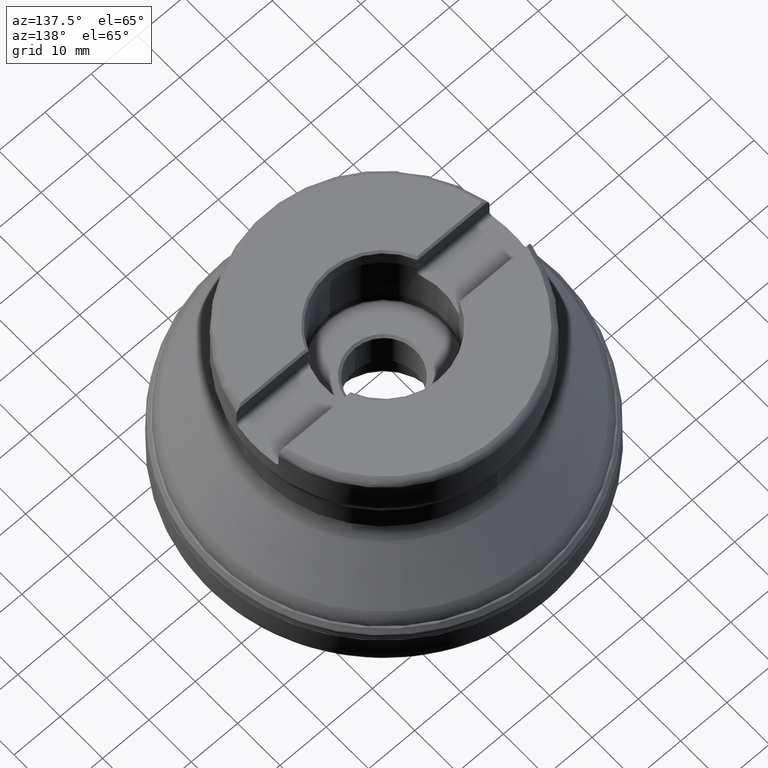
[diagram: clean part render]
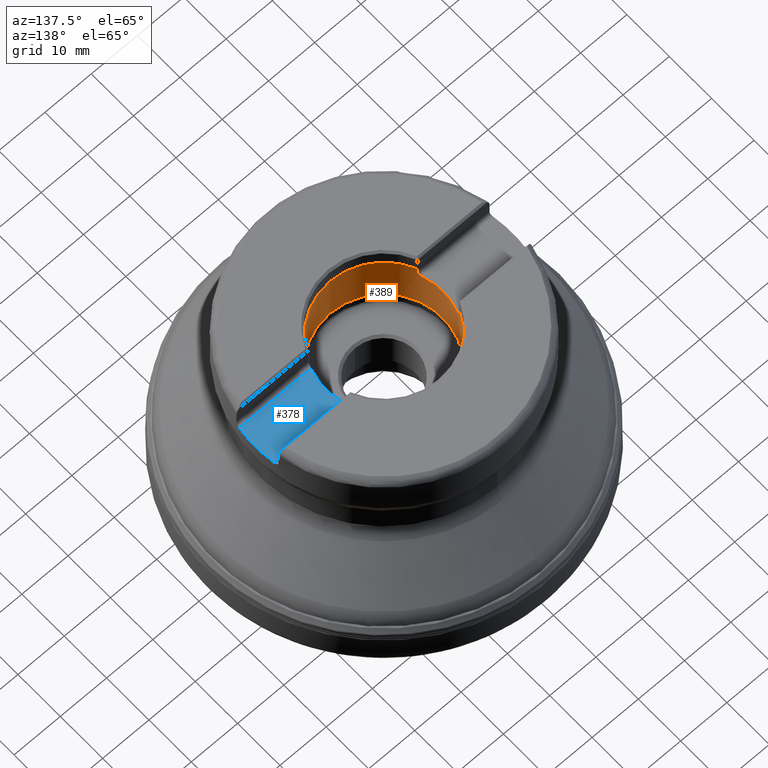
[diagram: same view with the hole feature highlighted: cylindrical wall and planar end face, labeled with their STEP entity ids]
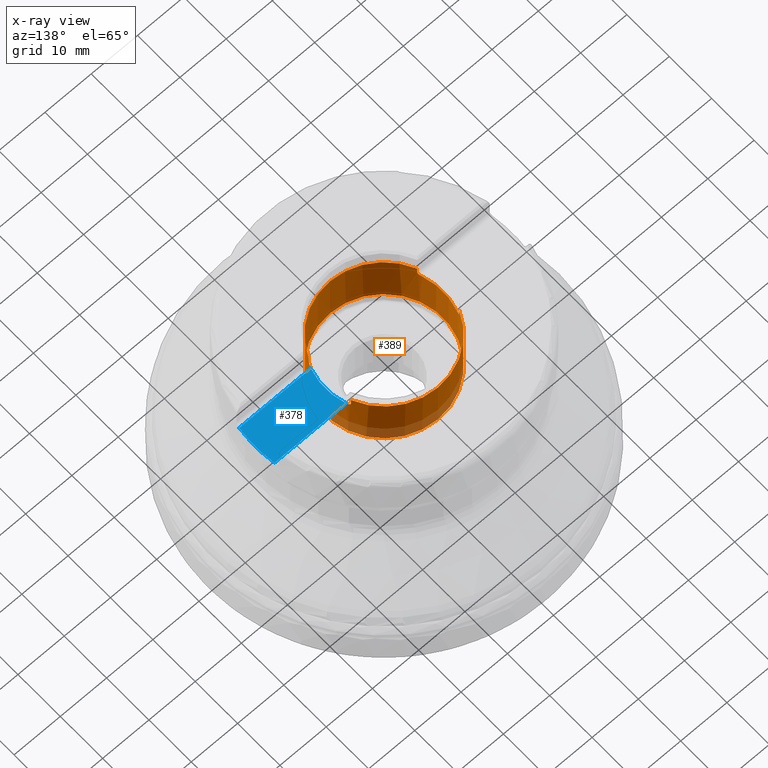
[diagram: x-ray of the same camera — body ghosted, the hole faces saturated]
A machine part, auxiliary view. The highlighted faces form one hole feature of diameter 25.4 mm: the cylindrical wall (entity #389, orange) and its adjacent planar end face (entity #378, blue) — they share a circular edge in the B-rep.
The next image is the same camera in x-ray (body ghosted, the hole faces saturated) — the bore reads through the body.
Wall:
#165=CYLINDRICAL_SURFACE('',#1260,12.7);
#188=FACE_BOUND('',#512,.T.);
#189=FACE_BOUND('',#513,.T.);
#327=LINE('',#2203,#354);
#328=LINE('',#2213,#355);
#329=LINE('',#2223,#356);
#330=LINE('',#2233,#357);
#354=VECTOR('',#1456,1.);
#355=VECTOR('',#1459,1.);
#356=VECTOR('',#1462,1.);
#357=VECTOR('',#1465,1.);
#389=ADVANCED_FACE('',(#188,#189),#165,.F.);
#512=EDGE_LOOP('',(#790));
#513=EDGE_LOOP('',(#791,#792,#793,#794,#795,#796,#797,#798,#799,#800,#801,
#802));
#630=CIRCLE('',#1242,12.7);
#631=CIRCLE('',#1248,12.7);
#634=CIRCLE('',#1257,12.7);
#635=CIRCLE('',#1258,12.7);
#636=CIRCLE('',#1259,12.7);
#790=ORIENTED_EDGE('',*,*,#1088,.F.);
#791=ORIENTED_EDGE('',*,*,#1085,.F.);
#792=ORIENTED_EDGE('',*,*,#1089,.F.);
#793=ORIENTED_EDGE('',*,*,#1087,.F.);
#794=ORIENTED_EDGE('',*,*,#1067,.T.);
#795=ORIENTED_EDGE('',*,*,#1065,.F.);
#796=ORIENTED_EDGE('',*,*,#1076,.T.);
#797=ORIENTED_EDGE('',*,*,#1083,.F.);
#798=ORIENTED_EDGE('',*,*,#1090,.F.);
#799=ORIENTED_EDGE('',*,*,#1081,.F.);
#800=ORIENTED_EDGE('',*,*,#1073,.T.);
#801=ORIENTED_EDGE('',*,*,#1077,.F.);
#802=ORIENTED_EDGE('',*,*,#1070,.T.);
#957=VERTEX_POINT('',#2103);
#958=VERTEX_POINT('',#2105);
#959=VERTEX_POINT('',#2124);
#960=VERTEX_POINT('',#2128);
#961=VERTEX_POINT('',#2145);
#962=VERTEX_POINT('',#2149);
#963=VERTEX_POINT('',#2166);
#964=VERTEX_POINT('',#2170);
#967=VERTEX_POINT('',#2202);
#968=VERTEX_POINT('',#2212);
#969=VERTEX_POINT('',#2222);
#970=VERTEX_POINT('',#2232);
#971=VERTEX_POINT('',#2236);
#1065=EDGE_CURVE('',#957,#958,#630,.T.);
#1067=EDGE_CURVE('',#959,#958,#1165,.T.);
#1070=EDGE_CURVE('',#961,#960,#1166,.T.);
#1073=EDGE_CURVE('',#963,#962,#1167,.T.);
#1076=EDGE_CURVE('',#957,#964,#1168,.T.);
#1077=EDGE_CURVE('',#961,#962,#631,.T.);
#1081=EDGE_CURVE('',#963,#967,#327,.T.);
#1083=EDGE_CURVE('',#968,#964,#328,.T.);
#1085=EDGE_CURVE('',#969,#960,#329,.T.);
#1087=EDGE_CURVE('',#959,#970,#330,.T.);
#1088=EDGE_CURVE('',#971,#971,#634,.T.);
#1089=EDGE_CURVE('',#970,#969,#635,.T.);
#1090=EDGE_CURVE('',#967,#968,#636,.T.);
#1165=B_SPLINE_CURVE_WITH_KNOTS('',3,(#2108,#2109,#2110,#2111,#2112,#2113,
#2114,#2115,#2116,#2117,#2118,#2119,#2120,#2121,#2122,#2123),
 .UNSPECIFIED.,.F.,.F.,(4,3,3,3,3,4),(0.,0.0919914640590944,0.30553597161609,
0.53426746635181,0.767237662896965,1.),.UNSPECIFIED.);
#1166=B_SPLINE_CURVE_WITH_KNOTS('',3,(#2129,#2130,#2131,#2132,#2133,#2134,
#2135,#2136,#2137,#2138,#2139,#2140,#2141,#2142,#2143,#2144),
 .UNSPECIFIED.,.F.,.F.,(4,3,3,3,3,4),(0.,0.187949566051452,0.405805927698822,
0.608459015387889,0.803993626920795,1.),.UNSPECIFIED.);
#1167=B_SPLINE_CURVE_WITH_KNOTS('',3,(#2150,#2151,#2152,#2153,#2154,#2155,
#2156,#2157,#2158,#2159,#2160,#2161,#2162,#2163,#2164,#2165),
 .UNSPECIFIED.,.F.,.F.,(4,3,3,3,3,4),(0.,0.118692613079593,0.33453699269261,
0.564581204634546,0.797853549801286,1.),.UNSPECIFIED.);
#1168=B_SPLINE_CURVE_WITH_KNOTS('',3,(#2171,#2172,#2173,#2174,#2175,#2176,
#2177,#2178,#2179,#2180,#2181,#2182,#2183,#2184,#2185,#2186),
 .UNSPECIFIED.,.F.,.F.,(4,3,3,3,3,4),(0.,0.188583691695649,0.406269930528108,
0.608764767553908,0.804146687201781,1.),.UNSPECIFIED.);
#1242=AXIS2_PLACEMENT_3D('',#2104,#1427,#1428);
#1248=AXIS2_PLACEMENT_3D('',#2188,#1446,#1447);
#1257=AXIS2_PLACEMENT_3D('',#2235,#1468,#1469);
#1258=AXIS2_PLACEMENT_3D('',#2237,#1470,#1471);
#1259=AXIS2_PLACEMENT_3D('',#2238,#1472,#1473);
#1260=AXIS2_PLACEMENT_3D('',#2239,#1474,#1475);
#1427=DIRECTION('',(0.,-1.17145536458252E-15,-1.));
#1428=DIRECTION('',(0.,-1.,1.09273919746571E-15));
#1446=DIRECTION('',(0.,-1.17145536458252E-15,-1.));
#1447=DIRECTION('',(0.,-1.,1.09273919746571E-15));
#1456=DIRECTION('',(0.,1.17145536458252E-15,1.));
#1459=DIRECTION('',(0.,-1.17145536458252E-15,-1.));
#1462=DIRECTION('',(0.,-1.17145536458252E-15,-1.));
#1465=DIRECTION('',(0.,1.17145536458252E-15,1.));
#1468=DIRECTION('',(0.,1.17145536458252E-15,1.));
#1469=DIRECTION('',(0.,-1.,1.09273919746571E-15));
#1470=DIRECTION('',(0.,-1.17145536458252E-15,-1.));
#1471=DIRECTION('',(0.,-1.,1.09273919746571E-15));
#1472=DIRECTION('',(0.,-1.17145536458252E-15,-1.));
#1473=DIRECTION('',(0.,-1.,1.09273919746571E-15));
#1474=DIRECTION('',(0.,1.17145536458252E-15,1.));
#1475=DIRECTION('',(0.,-1.,1.09273919746571E-15));
#2103=CARTESIAN_POINT('',(11.9976153880677,4.16500000000004,38.89));
#2104=CARTESIAN_POINT('',(0.,4.55578991286144E-14,38.89));
#2105=CARTESIAN_POINT('',(11.9976153880677,-4.16499999999995,38.89));
#2108=CARTESIAN_POINT('',(11.6892589585482,-4.96499999999995,39.69));
#2109=CARTESIAN_POINT('',(11.6892589585482,-4.96499999999995,39.6498060238737));
#2110=CARTESIAN_POINT('',(11.6905568194861,-4.96194760993451,39.6094795672361));
#2111=CARTESIAN_POINT('',(11.6931107662262,-4.95592177185671,39.5698220036655));
#2112=CARTESIAN_POINT('',(11.698958464125,-4.9421245848943,39.4790192286835));
#2113=CARTESIAN_POINT('',(11.711724380251,-4.91199201726467,39.3897399894335));
#2114=CARTESIAN_POINT('',(11.729516346995,-4.86913198276407,39.3102656838674));
#2115=CARTESIAN_POINT('',(11.7485630195713,-4.82324941927429,39.2251867772956));
#2116=CARTESIAN_POINT('',(11.773916121918,-4.76138290617577,39.1484896030576));
#2117=CARTESIAN_POINT('',(11.8022061367056,-4.69019512458788,39.0865349379549));
#2118=CARTESIAN_POINT('',(11.8310456314685,-4.61762465512358,39.0233769207823));
#2119=CARTESIAN_POINT('',(11.8637793603147,-4.53318108009497,38.9734606160419));
#2120=CARTESIAN_POINT('',(11.8969626110095,-4.44435379242484,38.9403591135365));
#2121=CARTESIAN_POINT('',(11.9301315013193,-4.35556494565559,38.9072719360387));
#2122=CARTESIAN_POINT('',(11.9646918126675,-4.25983899036061,38.89));
#2123=CARTESIAN_POINT('',(11.9976153880677,-4.16499999999995,38.89));
#2124=CARTESIAN_POINT('',(11.6892589585482,-4.96499999999995,39.69));
#2128=CARTESIAN_POINT('',(-11.6892589585482,-4.96499999999995,39.69));
#2129=CARTESIAN_POINT('',(-11.9976153880677,-4.16499999999995,38.89));
#2130=CARTESIAN_POINT('',(-11.9709296500294,-4.24187040127985,38.89));
#2131=CARTESIAN_POINT('',(-11.9432374526267,-4.31916929808128,38.9012554639037));
#2132=CARTESIAN_POINT('',(-11.9161252503018,-4.39271658761626,38.923093776447));
#2133=CARTESIAN_POINT('',(-11.8848042548693,-4.47768107305346,38.9483221839082));
#2134=CARTESIAN_POINT('',(-11.8535280004186,-4.55960218043711,38.988348905998));
#2135=CARTESIAN_POINT('',(-11.8250446269604,-4.63231255102615,39.0406780616263));
#2136=CARTESIAN_POINT('',(-11.7985253217435,-4.70000918509653,39.0893988654275));
#2137=CARTESIAN_POINT('',(-11.7738131527377,-4.76132932683089,39.1499720685128));
#2138=CARTESIAN_POINT('',(-11.7532950701827,-4.81145040431872,39.2187231442601));
#2139=CARTESIAN_POINT('',(-11.7335040571655,-4.85979541386512,39.2850379878333));
#2140=CARTESIAN_POINT('',(-11.7171731226468,-4.898842546446,39.360635842045));
#2141=CARTESIAN_POINT('',(-11.7061753454793,-4.92498312493471,39.4401487446211));
#2142=CARTESIAN_POINT('',(-11.695162667562,-4.95115912096419,39.5197693782281));
#2143=CARTESIAN_POINT('',(-11.6892589585482,-4.96499999999995,39.6054665324323));
#2144=CARTESIAN_POINT('',(-11.6892589585482,-4.96499999999995,39.69));
#2145=CARTESIAN_POINT('',(-11.9976153880677,-4.16499999999995,38.89));
#2149=CARTESIAN_POINT('',(-11.9976153880677,4.16500000000004,38.89));
#2150=CARTESIAN_POINT('',(-11.6892589585482,4.96500000000004,39.69));
#2151=CARTESIAN_POINT('',(-11.6892589585482,4.96500000000004,39.6382539759116));
#2152=CARTESIAN_POINT('',(-11.6914220951532,4.95991594525217,39.5862283812656));
#2153=CARTESIAN_POINT('',(-11.6956342369027,4.94996361568347,39.5356234407262));
#2154=CARTESIAN_POINT('',(-11.7032051314672,4.93207531981962,39.4446662289205));
#2155=CARTESIAN_POINT('',(-11.7177419428267,4.89766190278369,39.3561102507696));
#2156=CARTESIAN_POINT('',(-11.7370989963523,4.85082540912645,39.2781219741275));
#2157=CARTESIAN_POINT('',(-11.7577225111587,4.80092457483116,39.1950312095163));
#2158=CARTESIAN_POINT('',(-11.7844129191554,4.73539703899577,39.1211342338802));
#2159=CARTESIAN_POINT('',(-11.8137123360767,4.66113729045066,39.0624270647771));
#2160=CARTESIAN_POINT('',(-11.8434497755986,4.58576736799775,39.0028422308741));
#2161=CARTESIAN_POINT('',(-11.876742969613,4.49913949129188,38.9569599142552));
#2162=CARTESIAN_POINT('',(-11.910184351188,4.40879901114995,38.9280537800065));
#2163=CARTESIAN_POINT('',(-11.9391988339032,4.33041761133607,38.9029741782371));
#2164=CARTESIAN_POINT('',(-11.9689979245307,4.24743489097243,38.89));
#2165=CARTESIAN_POINT('',(-11.9976153880677,4.16500000000004,38.89));
#2166=CARTESIAN_POINT('',(-11.6892589585482,4.96500000000004,39.69));
#2170=CARTESIAN_POINT('',(11.6892589585482,4.96500000000004,39.69));
#2171=CARTESIAN_POINT('',(11.9976153880677,4.16500000000004,38.89));
#2172=CARTESIAN_POINT('',(11.9709296500294,4.24187040127994,38.89));
#2173=CARTESIAN_POINT('',(11.9432374526267,4.31916929808137,38.9012554639037));
#2174=CARTESIAN_POINT('',(11.9161252503018,4.39271658761635,38.9230937764469));
#2175=CARTESIAN_POINT('',(11.8848042548693,4.47768107305355,38.9483221839082));
#2176=CARTESIAN_POINT('',(11.8535280004186,4.5596021804372,38.988348905998));
#2177=CARTESIAN_POINT('',(11.8250446269604,4.63231255102624,39.0406780616263));
#2178=CARTESIAN_POINT('',(11.7985253217435,4.70000918509662,39.0893988654275));
#2179=CARTESIAN_POINT('',(11.7738131527377,4.76132932683098,39.1499720685128));
#2180=CARTESIAN_POINT('',(11.7532950701827,4.81145040431881,39.2187231442601));
#2181=CARTESIAN_POINT('',(11.7335040571655,4.85979541386521,39.2850379878333));
#2182=CARTESIAN_POINT('',(11.7171731226468,4.89884254644609,39.360635842045));
#2183=CARTESIAN_POINT('',(11.7061753454793,4.9249831249348,39.4401487446211));
#2184=CARTESIAN_POINT('',(11.695162667562,4.95115912096428,39.5197693782281));
#2185=CARTESIAN_POINT('',(11.6892589585482,4.96500000000004,39.6054665324323));
#2186=CARTESIAN_POINT('',(11.6892589585482,4.96500000000004,39.69));
#2188=CARTESIAN_POINT('',(0.,4.55578991286144E-14,38.89));
#2202=CARTESIAN_POINT('',(-11.6892589585482,4.96500000000005,40.95));
#2203=CARTESIAN_POINT('',(-11.6892589585482,4.96500000000005,44.65));
#2212=CARTESIAN_POINT('',(11.6892589585482,4.96500000000005,40.95));
#2213=CARTESIAN_POINT('',(11.6892589585482,4.96500000000005,44.65));
#2222=CARTESIAN_POINT('',(-11.6892589585482,-4.96499999999995,40.95));
#2223=CARTESIAN_POINT('',(-11.6892589585482,-4.96499999999995,44.65));
#2232=CARTESIAN_POINT('',(11.6892589585482,-4.96499999999995,40.95));
#2233=CARTESIAN_POINT('',(11.6892589585482,-4.96499999999995,44.65));
#2235=CARTESIAN_POINT('',(0.,3.38550600364349E-14,28.9));
#2236=CARTESIAN_POINT('',(0.,-12.7,28.9));
#2237=CARTESIAN_POINT('',(0.,4.79710971796544E-14,40.95));
#2238=CARTESIAN_POINT('',(0.,4.79710971796544E-14,40.95));
#2239=CARTESIAN_POINT('',(0.,5.23054820286097E-14,44.65));
End face:
#292=PLANE('',#1243);
#319=LINE('',#2102,#346);
#320=LINE('',#2106,#347);
#346=VECTOR('',#1426,1.);
#347=VECTOR('',#1429,1.);
#378=ADVANCED_FACE('',(#460),#292,.T.);
#460=FACE_OUTER_BOUND('',#500,.T.);
#500=EDGE_LOOP('',(#740,#741,#742,#743));
#613=CIRCLE('',#1216,27.8);
#630=CIRCLE('',#1242,12.7);
#740=ORIENTED_EDGE('',*,*,#1041,.T.);
#741=ORIENTED_EDGE('',*,*,#1064,.T.);
#742=ORIENTED_EDGE('',*,*,#1065,.T.);
#743=ORIENTED_EDGE('',*,*,#1066,.T.);
#935=VERTEX_POINT('',#2003);
#936=VERTEX_POINT('',#2005);
#957=VERTEX_POINT('',#2103);
#958=VERTEX_POINT('',#2105);
#1041=EDGE_CURVE('',#936,#935,#613,.T.);
#1064=EDGE_CURVE('',#935,#957,#319,.T.);
#1065=EDGE_CURVE('',#957,#958,#630,.T.);
#1066=EDGE_CURVE('',#958,#936,#320,.T.);
#1216=AXIS2_PLACEMENT_3D('',#2004,#1371,#1372);
#1242=AXIS2_PLACEMENT_3D('',#2104,#1427,#1428);
#1243=AXIS2_PLACEMENT_3D('',#2107,#1430,#1431);
#1371=DIRECTION('',(0.,1.17145536458252E-15,1.));
#1372=DIRECTION('',(0.,-1.,1.24800250070274E-15));
#1426=DIRECTION('',(-1.,0.,0.));
#1427=DIRECTION('',(0.,-1.17145536458252E-15,-1.));
#1428=DIRECTION('',(0.,-1.,1.09273919746571E-15));
#1429=DIRECTION('',(1.,0.,0.));
#1430=DIRECTION('',(0.,1.17145536458252E-15,1.));
#1431=DIRECTION('',(0.,-1.,1.17267306976032E-15));
#2003=CARTESIAN_POINT('',(27.4862288246314,4.16500000000004,38.89));
#2004=CARTESIAN_POINT('',(0.,4.55578991286144E-14,38.89));
#2005=CARTESIAN_POINT('',(27.4862288246314,-4.16499999999995,38.89));
#2102=CARTESIAN_POINT('',(-39.,4.16500000000004,38.89));
#2103=CARTESIAN_POINT('',(11.9976153880677,4.16500000000004,38.89));
#2104=CARTESIAN_POINT('',(0.,4.55578991286144E-14,38.89));
#2105=CARTESIAN_POINT('',(11.9976153880677,-4.16499999999995,38.89));
#2106=CARTESIAN_POINT('',(-39.,-4.16499999999995,38.89));
#2107=CARTESIAN_POINT('',(-39.,4.96500000000004,38.89));